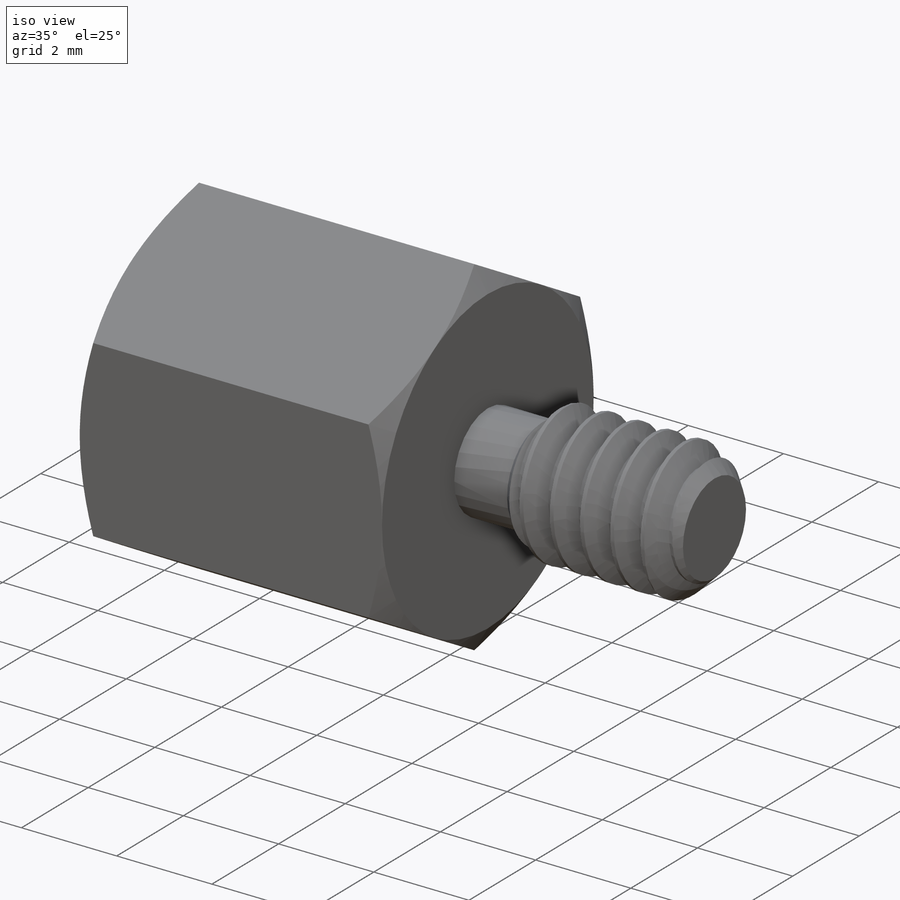
[diagram: iso view]
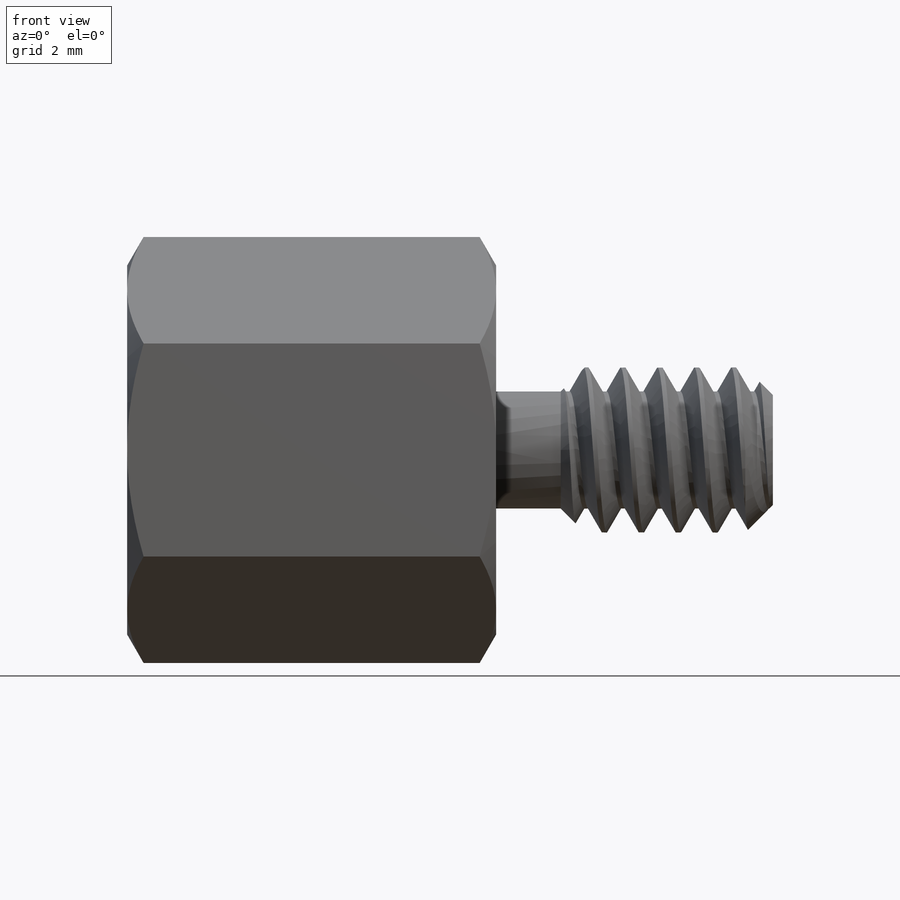
[diagram: front view]
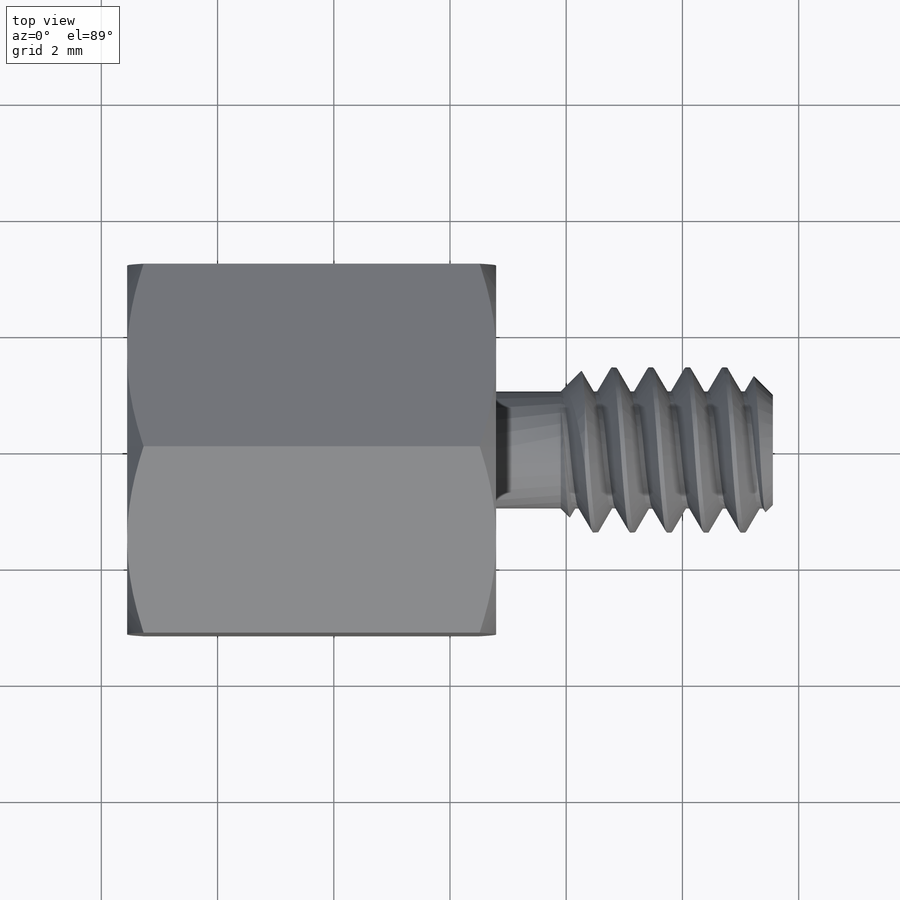
[diagram: top view]
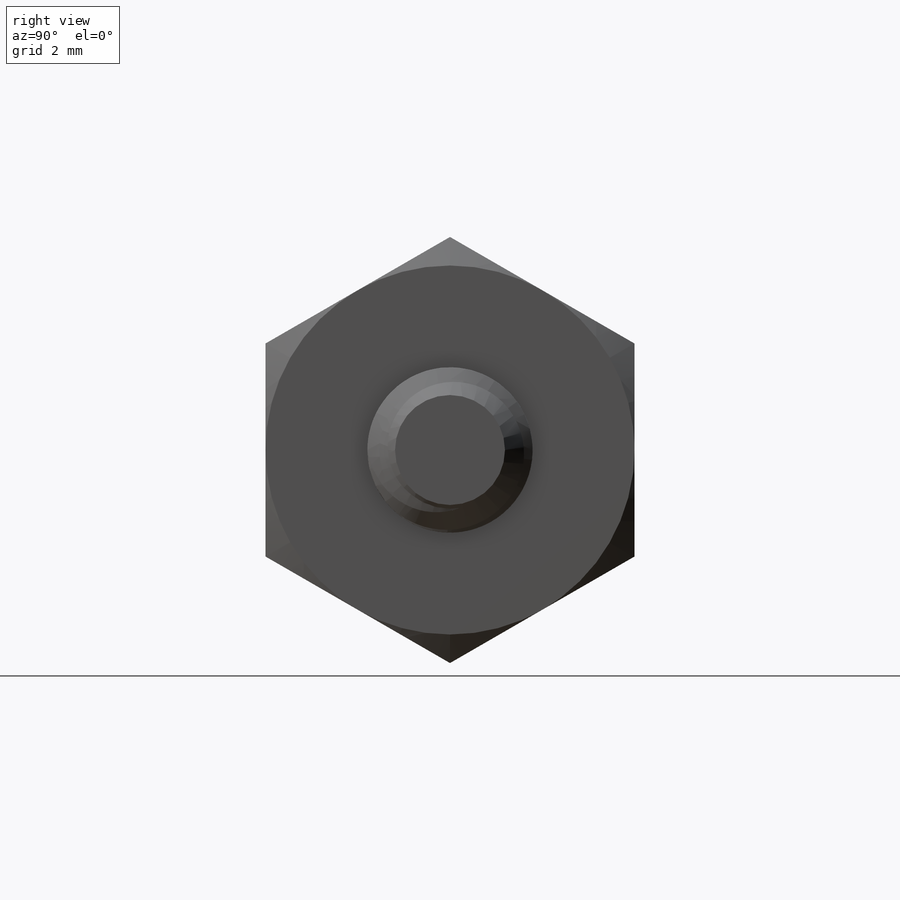
[diagram: right view]
SOLIDWORKS PART (.sldprt)
format: sldprt  version: not decoded by parser v0  size: 677,888 bytes
history: native  units: mm
features: sketch x13, cut_extrude x4, plane x2, extrude x2, helix x2, sweep x2, material x1, chamfer x1, cut_revolve x1 (+12 scaffold rows collapsed)
feature tree (40):
  scaffold x12  (default folders/planes/origin — collapsed)
  material  "6061-T6 (SS)"
  sketch  "Sketch1"  dims[Hex=6.35mm Male Thread=2.8448mm A=6.35mm B=4.7625mm C=12.7mm Female Thread=2.8448mm D1=2.8575mm D2=5.08mm]
  plane  "Plane1"
  sketch  "Sketch2"
  extrude  "Extrude1"  [1 undecoded]
  sketch  "Sketch3"  dims[D1=0.0mm]
  helix  "Helix/Spiral1"  Pitch=5.3975mm Male Pitch=0.635mm
  chamfer  "Chamfer1"  Distance=0.47625mm Angle=45deg
  sketch  "Sketch4"  dims[c1.D1=~2.527978mm c2.D1=60.0deg c2.D2=~0.15875mm c2.D3=1.27mm c3.D1=~0.079375mm c3.D2=0.3175mm c3.D3=~1.224125mm c4.D3=60.0deg]
  sweep  "Cut-Sweep1"
  sketch  "Sketch16"  dims[c1.D1=~1.11125mm c1.D2=~0.79375mm c2.D2=45.0deg c2.D3=~0.00254mm]
  cut_revolve  "Cut-Revolve1"  Angle=360deg
  plane  "Plane2"
  sketch  "Sketch7"
  extrude  "Extrude4"  [1 undecoded]
  sketch  "Sketch17"
  sketch  "Sketch8"
  cut_extrude  "Extrude5"  [1 undecoded]
  sketch  "Sketch9"
  cut_extrude  "Extrude6"  [1 undecoded]
  sketch  "Sketch10"  dims[c1.D1=2.413mm c2.D1=45.0deg]
  cut_extrude  "Extrude7"  [1 undecoded]
  sketch  "Sketch11"
  helix  "Helix/Spiral2"  Pitch=5.87375mm Female Pitch=0.635mm
  sketch  "Sketch12"  dims[c1.D1=~2.709173mm c2.D1=60.0deg c2.D2=~0.079375mm c2.D3=0.3175mm]
  sweep  "Sweep3"
  sketch  "Sketch13"  dims[D1=0.0508mm]
  cut_extrude  "Extrude8"  [1 undecoded]
decode coverage: 11 of 25 modeling features carry decoded parameters
note: ~ marks probable driven/reference dimensions
note: 6 parameter values undecoded
summary: no parameter record found for 6 features
note: suppression state not decoded; provenance and decode notes live in map.json
